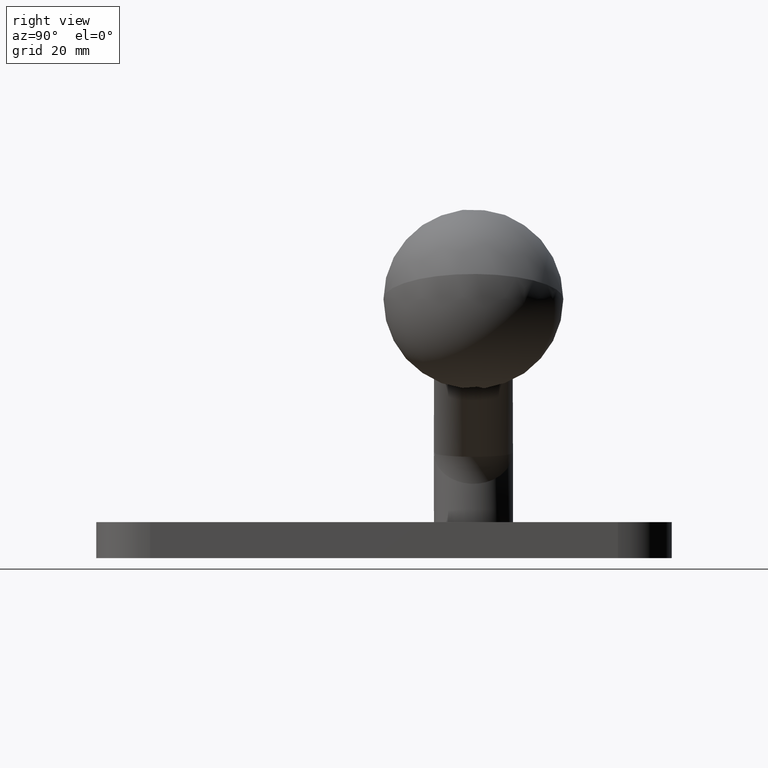
[diagram: clean part render]
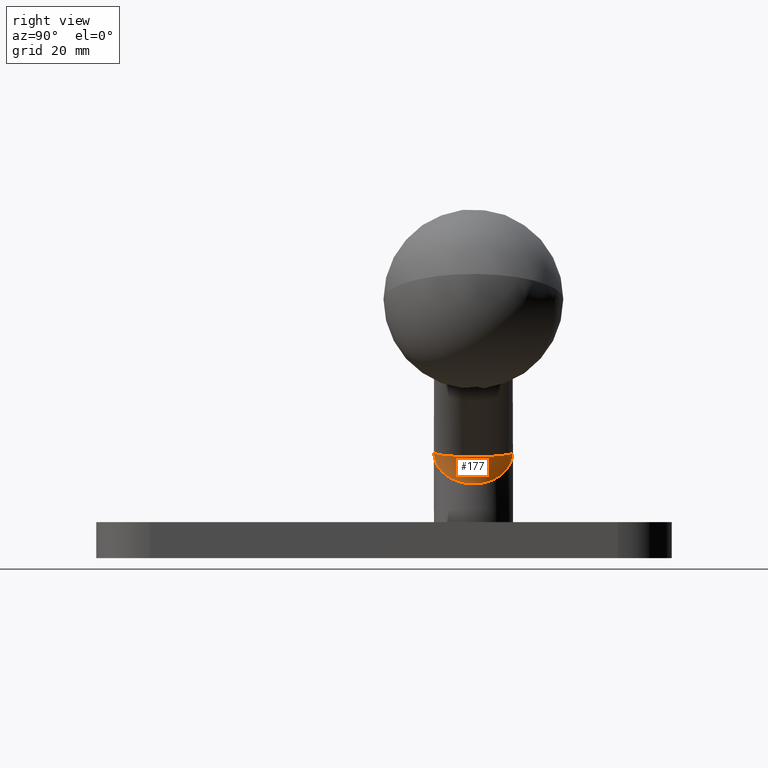
[diagram: same view with one face highlighted and labeled with its STEP entity id]
A machine part, right view. The second image highlights one B-rep face of the part: STEP entity #177.
In plain terms, the highlighted face is a freeform B-spline surface patch.
Its self-contained STEP definition (entity closure, byte-faithful):
#177 = ADVANCED_FACE ( 'NONE', ( #3679 ), #3668, .F. ) ;
#231 = CARTESIAN_POINT ( 'NONE',  ( 21.99999999999997158, 10.99999999999998401, 1.946233063278145270 ) ) ;
#679 = CARTESIAN_POINT ( 'NONE',  ( 10.92909303327826365, -1.439878830995884762, 10.70484150701775228 ) ) ;
#684 = CARTESIAN_POINT ( 'NONE',  ( 27.95333621235700505, -11.00000000000000355, 16.99630220884506926 ) ) ;
#723 = CARTESIAN_POINT ( 'NONE',  ( 9.887162564853426261, -4.874663269823607870, 11.52915165847816326 ) ) ;
#725 = CARTESIAN_POINT ( 'NONE',  ( 9.236156168757863938, 8.287254929552549498, 18.57314753187407064 ) ) ;
#770 = CARTESIAN_POINT ( 'NONE',  ( 10.52983742378732757, 7.269094256551453803, 18.46416021478434288 ) ) ;
#807 = CARTESIAN_POINT ( 'NONE',  ( 10.60243828600084903, 3.045726662662001871, 15.15726296840687226 ) ) ;
#896 = CARTESIAN_POINT ( 'NONE',  ( 0.9147811651901520680, -11.00000000000000000, 19.27418910037476252 ) ) ;
#939 = CARTESIAN_POINT ( 'NONE',  ( 5.402595686018859471E-15, -11.00000000000000000, 19.35125564557401034 ) ) ;
#1130 = CARTESIAN_POINT ( 'NONE',  ( 1.078506148106765845E-14, -11.00000000000000178, 19.35125564557399258 ) ) ;
#1257 = CARTESIAN_POINT ( 'NONE',  ( 10.17973274781040693, -4.269724308695109549, 15.32447204654445372 ) ) ;
#1407 = CARTESIAN_POINT ( 'NONE',  ( 3.544372242186458966, -10.43818715040396583, 16.54717024033242723 ) ) ;
#1434 = CARTESIAN_POINT ( 'NONE',  ( 7.867316879270116914, -7.762561227216938420, 16.23919137408172730 ) ) ;
#1615 = CARTESIAN_POINT ( 'NONE',  ( 13.88657327524566654, -1.439878830996116132, 18.18136904561967881 ) ) ;
#1661 = CARTESIAN_POINT ( 'NONE',  ( 11.11295539161126200, 6.709887710574307995, 18.41503492784354634 ) ) ;
#1687 = CARTESIAN_POINT ( 'NONE',  ( 8.287254929552787530, -7.269094256551264621, 12.79489840947810464 ) ) ;
#1702 = CARTESIAN_POINT ( 'NONE',  ( 13.97666810617850608, -0.7199483162016654392, 18.17377892720953980 ) ) ;
#1746 = CARTESIAN_POINT ( 'NONE',  ( 12.12939423143992457, 5.512657415856931031, 18.32940414227691051 ) ) ;
#1795 = CARTESIAN_POINT ( 'NONE',  ( 11.00000000000001243, 0.6072946970683534840, 15.00000000000003553 ) ) ;
#1922 = CARTESIAN_POINT ( 'NONE',  ( 1.635954743731397043, -10.90916098932924427, 18.70412316246219930 ) ) ;
#2352 =( BOUNDED_CURVE ( )  B_SPLINE_CURVE ( 3, ( #5592, #684, #2629, #5422 ),
 .UNSPECIFIED., .F., .F. ) 
 B_SPLINE_CURVE_WITH_KNOTS ( ( 4, 4 ),
 ( 4.712388980384689674, 7.853981633974482790 ),
 .UNSPECIFIED. ) 
 CURVE ( )  GEOMETRIC_REPRESENTATION_ITEM ( )  RATIONAL_B_SPLINE_CURVE ( ( 1.000000000000000000, 0.3333333333333333703, 0.3333333333333333703, 1.000000000000000000 ) ) 
 REPRESENTATION_ITEM ( '' )  );
#2408 = CARTESIAN_POINT ( 'NONE',  ( 6.193777332000371061, -9.887162564843988477, 18.82945541738045137 ) ) ;
#2626 = CARTESIAN_POINT ( 'NONE',  ( 6.193777332001635827, 9.887162564843631429, 18.82945541738054374 ) ) ;
#2629 = CARTESIAN_POINT ( 'NONE',  ( 27.95333621235701216, 10.99999999999999822, 16.99630220884506926 ) ) ;
#2641 = CARTESIAN_POINT ( 'NONE',  ( 9.229412024598333986, -6.075636844569462625, 15.70038917490340680 ) ) ;
#2667 = CARTESIAN_POINT ( 'NONE',  ( 8.287254929553482086, 7.269094256550570954, 12.79489840947806911 ) ) ;
#2712 = CARTESIAN_POINT ( 'NONE',  ( 3.220239124936370878, 10.55582240140069139, 18.07742985716721051 ) ) ;
#2757 = CARTESIAN_POINT ( 'NONE',  ( 5.512657415847559861, 9.546147589134260869, 14.98998624506225319 ) ) ;
#2797 = CARTESIAN_POINT ( 'NONE',  ( 1.635954743741726558, 10.90916098944561696, 18.70412316242745732 ) ) ;
#2922 = CARTESIAN_POINT ( 'NONE',  ( 3.623906405500773698, -10.64818313558681062, 19.04595645769901680 ) ) ;
#3090 = CARTESIAN_POINT ( 'NONE',  ( 9.236156168757974072, -8.287254929553299121, 18.57314753187529632 ) ) ;
#3349 = CARTESIAN_POINT ( 'NONE',  ( 3.220239124946806974, -10.55582240151740869, 18.07742985713228734 ) ) ;
#3585 = CARTESIAN_POINT ( 'NONE',  ( 8.822342223963236307, 6.659776321984671732, 15.86141324473610048 ) ) ;
#3609 = CARTESIAN_POINT ( 'NONE',  ( 8.822342223965760510, -6.659776321990632297, 15.86141324473352654 ) ) ;
#3626 = CARTESIAN_POINT ( 'NONE',  ( 9.908750060303846752, 4.880226819671553251, 15.43166431462379684 ) ) ;
#3666 = CARTESIAN_POINT ( 'NONE',  ( 10.43818715039512135, 3.544372242207829871, 11.09321550598993866 ) ) ;
#3668 =( BOUNDED_SURFACE ( )  B_SPLINE_SURFACE ( 3, 2, ( 
 ( #6799, #939, #8789 ),
 ( #896, #9733, #11739 ),
 ( #7808, #1922, #5807 ),
 ( #2922, #3349, #10168 ),
 ( #11226, #9232, #1407 ),
 ( #2408, #4339, #8146 ),
 ( #4064, #8244, #9446 ),
 ( #6012, #8649, #10899 ),
 ( #3090, #1434, #6525 ),
 ( #4668, #3609, #1687 ),
 ( #8497, #2641, #10312 ),
 ( #8375, #4890, #12584 ),
 ( #10130, #1257, #723 ),
 ( #4419, #6542, #9569 ),
 ( #4689, #11571, #9481 ),
 ( #1615, #11529, #679 ),
 ( #1702, #10601, #3707 ),
 ( #9607, #1795, #8581 ),
 ( #6685, #11608, #5633 ),
 ( #4599, #5589, #12557 ),
 ( #5672, #807, #3666 ),
 ( #12510, #7543, #6635 ),
 ( #1746, #3626, #6594 ),
 ( #1661, #10554, #12606 ),
 ( #770, #3585, #2667 ),
 ( #725, #8531, #9525 ),
 ( #7680, #8667, #7632 ),
 ( #8623, #6730, #2757 ),
 ( #2626, #7507, #10503 ),
 ( #12651, #7588, #8485 ),
 ( #10463, #2712, #4639 ),
 ( #4558, #2797, #5537 ),
 ( #9659, #3749, #10649 ),
 ( #4733, #11657, #11480 ) ),
 .UNSPECIFIED., .F., .F., .F. ) 
 B_SPLINE_SURFACE_WITH_KNOTS ( ( 4, 2, 2, 2, 2, 2, 2, 2, 2, 2, 2, 2, 2, 2, 2, 2, 4 ),
 ( 3, 3 ),
 ( 4.712388980384689674, 4.908738521234051966, 5.105088062083414258, 5.301437602932775661, 5.497787143782137953, 5.694136684631500245, 5.890486225480861648, 6.086835766330223940, 6.283185307179586232, 6.479534848028948524, 6.675884388878310816, 6.872233929727672219, 7.068583470577034511, 7.264933011426396803, 7.461282552275758206, 7.657632093125120498, 7.853981633974482790 ),
 ( 0.000000000000000000, 1.000000000000000000 ),
 .UNSPECIFIED. ) 
 GEOMETRIC_REPRESENTATION_ITEM ( )  RATIONAL_B_SPLINE_SURFACE ( (
 ( 1.000000000000000000, 1.000000000000000000, 1.000000000000000000),
 ( 1.000000000000000000, 1.000003721399447487, 1.000000000000000000),
 ( 1.000000000000000000, 0.9991206620187771392, 1.000000000000000000),
 ( 1.000000000000000000, 0.9957230236367944354, 1.000000000000000000),
 ( 1.000000000000000000, 0.9932054936354295371, 1.000000000000000000),
 ( 1.000000000000000000, 0.9868806866984661808, 1.000000000000000000),
 ( 1.000000000000000000, 0.9830750323032146909, 1.000000000000000000),
 ( 1.000000000000000000, 0.9747171718646607808, 1.000000000000000000),
 ( 1.000000000000000000, 0.9701675354598475742, 1.000000000000000000),
 ( 1.000000000000000000, 0.9609963127232188373, 1.000000000000000000),
 ( 1.000000000000000000, 0.9563782011257807580, 1.000000000000000000),
 ( 1.000000000000000000, 0.9477849490160208390, 1.000000000000000000),
 ( 1.000000000000000000, 0.9438138046340357468, 1.000000000000000000),
 ( 1.000000000000000000, 0.9371557154563828762, 1.000000000000000000),
 ( 1.000000000000000000, 0.9344724453801728226, 1.000000000000000000),
 ( 1.000000000000000000, 0.9308388655967781977, 1.000000000000000000),
 ( 1.000000000000000000, 0.9298908023335933359, 1.000000000000000000),
 ( 1.000000000000000000, 0.9298908023335933359, 1.000000000000000000),
 ( 1.000000000000000000, 0.9308388655968582448, 1.000000000000000000),
 ( 1.000000000000000000, 0.9344724453800925534, 1.000000000000000000),
 ( 1.000000000000000000, 0.9371557154563827652, 1.000000000000000000),
 ( 1.000000000000000000, 0.9438138046340356357, 1.000000000000000000),
 ( 1.000000000000000000, 0.9477849490159389045, 1.000000000000000000),
 ( 1.000000000000000000, 0.9563782011258624705, 1.000000000000000000),
 ( 1.000000000000000000, 0.9609963127231353486, 1.000000000000000000),
 ( 1.000000000000000000, 0.9701675354599301748, 1.000000000000000000),
 ( 1.000000000000000000, 0.9747171718646606697, 1.000000000000000000),
 ( 1.000000000000000000, 0.9830750323032145799, 1.000000000000000000),
 ( 1.000000000000000000, 0.9868806866984660697, 1.000000000000000000),
 ( 1.000000000000000000, 0.9932054936354294261, 1.000000000000000000),
 ( 1.000000000000000000, 0.9957230236368802556, 1.000000000000000000),
 ( 1.000000000000000000, 0.9991206620186913190, 1.000000000000000000),
 ( 1.000000000000000000, 1.000003721399511436, 1.000000000000000000),
 ( 1.000000000000000000, 1.000000000000000000, 1.000000000000000000) ) ) 
 REPRESENTATION_ITEM ( '' )  SURFACE ( )  );
#3678 = VERTEX_POINT ( 'NONE', #4276 ) ;
#3679 = FACE_OUTER_BOUND ( 'NONE', #10266, .T. ) ;
#3707 = CARTESIAN_POINT ( 'NONE',  ( 11.00000000000000888, -0.7199483162016662163, 10.64874435442606426 ) ) ;
#3749 = CARTESIAN_POINT ( 'NONE',  ( 0.8174075354526428860, 11.00000000000402878, 19.02791481344319280 ) ) ;
#4064 = CARTESIAN_POINT ( 'NONE',  ( 7.004416644032156469, -9.546147589136060319, 18.76116239435144095 ) ) ;
#4115 = CARTESIAN_POINT ( 'NONE',  ( 1.103679378501649205E-14, 11.00000000000000178, 19.35125564557399258 ) ) ;
#4276 = CARTESIAN_POINT ( 'NONE',  ( 1.078506148106765845E-14, -11.00000000000000178, 19.35125564557399258 ) ) ;
#4339 = CARTESIAN_POINT ( 'NONE',  ( 5.427593820518415768, -9.619978119850923548, 17.20426944071693853 ) ) ;
#4419 = CARTESIAN_POINT ( 'NONE',  ( 13.26282522102195927, -3.544372242208381429, 18.23391724998069208 ) ) ;
#4558 = CARTESIAN_POINT ( 'NONE',  ( 1.829518957593449846, 10.92909303328391601, 19.19712620914247481 ) ) ;
#4599 = CARTESIAN_POINT ( 'NONE',  ( 13.52964741999969078, 2.852108253358137890, 18.21143857875264516 ) ) ;
#4639 = CARTESIAN_POINT ( 'NONE',  ( 2.852108253388758730, 10.64818313558687990, 17.09484616569312720 ) ) ;
#4668 = CARTESIAN_POINT ( 'NONE',  ( 10.52983742378710375, -7.269094256550785005, 18.46416021478312430 ) ) ;
#4689 = CARTESIAN_POINT ( 'NONE',  ( 13.52964741999667098, -2.852108253358733414, 18.21143857874960048 ) ) ;
#4733 = CARTESIAN_POINT ( 'NONE',  ( -3.836901103704024403E-14, 11.00000000000000000, 19.35125564557401390 ) ) ;
#4890 = CARTESIAN_POINT ( 'NONE',  ( 9.908750060301239060, -4.880226819671616312, 15.43166431462380750 ) ) ;
#5422 = CARTESIAN_POINT ( 'NONE',  ( 1.103679378501649205E-14, 11.00000000000000178, 19.35125564557399258 ) ) ;
#5537 = CARTESIAN_POINT ( 'NONE',  ( 1.439878830966099255, 10.92909303328418247, 18.21211366517679409 ) ) ;
#5589 = CARTESIAN_POINT ( 'NONE',  ( 10.75319914060290749, 2.433778498289038694, 15.09762669388729783 ) ) ;
#5592 = CARTESIAN_POINT ( 'NONE',  ( 1.078506148106765845E-14, -11.00000000000000178, 19.35125564557399258 ) ) ;
#5633 = CARTESIAN_POINT ( 'NONE',  ( 10.92909303327811976, 1.439878830996581316, 10.70484150701900283 ) ) ;
#5672 = CARTESIAN_POINT ( 'NONE',  ( 13.26282522102282435, 3.544372242207484813, 18.23391724998107932 ) ) ;
#5807 = CARTESIAN_POINT ( 'NONE',  ( 1.439878830966010437, -10.92909303328419846, 18.21211366517681185 ) ) ;
#5987 = CARTESIAN_POINT ( 'NONE',  ( 21.99999999999997158, -10.99999999999997868, 1.946233063278145270 ) ) ;
#6012 = CARTESIAN_POINT ( 'NONE',  ( 8.525624869142321316, -8.746183881519932868, 18.63300686720276644 ) ) ;
#6525 = CARTESIAN_POINT ( 'NONE',  ( 7.269094256551221989, -8.287254929552826610, 13.60040338702353679 ) ) ;
#6542 = CARTESIAN_POINT ( 'NONE',  ( 10.60243828599956828, -3.045726662663296835, 15.15726296840814058 ) ) ;
#6594 = CARTESIAN_POINT ( 'NONE',  ( 9.546147589127457422, 5.512657415857732168, 11.79894135635993813 ) ) ;
#6635 = CARTESIAN_POINT ( 'NONE',  ( 9.887162564853216651, 4.874663269824117684, 11.52915165847815615 ) ) ;
#6685 = CARTESIAN_POINT ( 'NONE',  ( 13.88657327524265384, 1.439878830996666359, 18.18136904561663059 ) ) ;
#6730 = CARTESIAN_POINT ( 'NONE',  ( 6.100466480934221281, 9.209623466699268235, 16.93810208049985278 ) ) ;
#6799 = CARTESIAN_POINT ( 'NONE',  ( 7.254295754689005331E-15, -11.00000000000000000, 19.35125564557400679 ) ) ;
#7386 = CARTESIAN_POINT ( 'NONE',  ( 1.103679378501649205E-14, 11.00000000000000178, 19.35125564557399258 ) ) ;
#7500 = EDGE_CURVE ( 'NONE', #10893, #3678, #8643, .T. ) ;
#7507 = CARTESIAN_POINT ( 'NONE',  ( 5.427593820519112988, 9.619978119850895126, 17.20426944071959241 ) ) ;
#7543 = CARTESIAN_POINT ( 'NONE',  ( 10.17973274780916348, 4.269724308696340564, 15.32447204654571493 ) ) ;
#7588 = CARTESIAN_POINT ( 'NONE',  ( 3.987996439165786278, 10.29234214139976089, 17.77372909825889380 ) ) ;
#7632 = CARTESIAN_POINT ( 'NONE',  ( 6.709887710583720910, 8.746183881521730541, 14.04281259432819340 ) ) ;
#7680 = CARTESIAN_POINT ( 'NONE',  ( 8.525624869141745776, 8.746183881521385928, 18.63300686720532440 ) ) ;
#7808 = CARTESIAN_POINT ( 'NONE',  ( 1.829518957593049056, -10.92909303328426240, 19.19712620914456025 ) ) ;
#8146 = CARTESIAN_POINT ( 'NONE',  ( 4.874663269845490809, -9.887162564844352630, 15.49472726863073646 ) ) ;
#8244 = CARTESIAN_POINT ( 'NONE',  ( 6.100466480938787406, -9.209623466711050810, 16.93810208049986343 ) ) ;
#8375 = CARTESIAN_POINT ( 'NONE',  ( 12.12939423143829565, -5.512657415857804999, 18.32940414227603299 ) ) ;
#8485 = CARTESIAN_POINT ( 'NONE',  ( 3.544372242186490940, 10.43818715040395695, 16.54717024033240236 ) ) ;
#8497 = CARTESIAN_POINT ( 'NONE',  ( 11.11295539161286605, -6.709887710573457120, 18.41503492784443097 ) ) ;
#8531 = CARTESIAN_POINT ( 'NONE',  ( 7.867316879272782337, 7.762561227222650295, 16.23919137407912316 ) ) ;
#8581 = CARTESIAN_POINT ( 'NONE',  ( 11.00000000000000533, 0.7199483162017051852, 10.64874435442606426 ) ) ;
#8623 = CARTESIAN_POINT ( 'NONE',  ( 7.004416644032757766, 9.546147589134600153, 18.76116239434887589 ) ) ;
#8643 =( BOUNDED_CURVE ( )  B_SPLINE_CURVE ( 3, ( #4115, #231, #5987, #1130 ),
 .UNSPECIFIED., .F., .F. ) 
 B_SPLINE_CURVE_WITH_KNOTS ( ( 4, 4 ),
 ( 4.712388980384690562, 7.853981633974481902 ),
 .UNSPECIFIED. ) 
 CURVE ( )  GEOMETRIC_REPRESENTATION_ITEM ( )  RATIONAL_B_SPLINE_CURVE ( ( 1.000000000000000000, 0.3333333333333339810, 0.3333333333333339810, 1.000000000000000000 ) ) 
 REPRESENTATION_ITEM ( '' )  );
#8649 = CARTESIAN_POINT ( 'NONE',  ( 7.320419902532260714, -8.281519759456708485, 16.45552669749496033 ) ) ;
#8667 = CARTESIAN_POINT ( 'NONE',  ( 7.320419902536895229, 8.281519759468592312, 16.45552669749494612 ) ) ;
#8789 = CARTESIAN_POINT ( 'NONE',  ( 3.550895617348713217E-15, -11.00000000000000000, 19.35125564557401390 ) ) ;
#9232 = CARTESIAN_POINT ( 'NONE',  ( 3.987996439166420881, -10.29234214139979109, 17.77372909826156189 ) ) ;
#9446 = CARTESIAN_POINT ( 'NONE',  ( 5.512657415846185849, -9.546147589135175693, 14.98998624506226207 ) ) ;
#9481 = CARTESIAN_POINT ( 'NONE',  ( 10.64818313559281293, -2.852108253358967005, 10.92707983032864050 ) ) ;
#9525 = CARTESIAN_POINT ( 'NONE',  ( 7.269094256550625133, 8.287254929553435900, 13.60040338702350127 ) ) ;
#9569 = CARTESIAN_POINT ( 'NONE',  ( 10.43818715039488687, -3.544372242208399637, 11.09321550598994754 ) ) ;
#9607 = CARTESIAN_POINT ( 'NONE',  ( 13.97666810617850253, 0.7199483162017044080, 18.17377892720953980 ) ) ;
#9659 = CARTESIAN_POINT ( 'NONE',  ( 0.9147811651891258888, 11.00000000000000355, 19.27418910036656641 ) ) ;
#9733 = CARTESIAN_POINT ( 'NONE',  ( 0.8174075354740794053, -11.00000000000537170, 19.02791481345135338 ) ) ;
#9938 = ORIENTED_EDGE ( 'NONE', *, *, #10908, .F. ) ;
#10130 = CARTESIAN_POINT ( 'NONE',  ( 12.56268997098125340, -4.874663269823621192, 18.29290076095634632 ) ) ;
#10168 = CARTESIAN_POINT ( 'NONE',  ( 2.852108253388801806, -10.64818313558687279, 17.09484616569314497 ) ) ;
#10266 = EDGE_LOOP ( 'NONE', ( #9938, #11174 ) ) ;
#10312 = CARTESIAN_POINT ( 'NONE',  ( 8.746183881528144966, -6.709887710574109931, 12.43182255616819987 ) ) ;
#10463 = CARTESIAN_POINT ( 'NONE',  ( 3.623906405500428640, 10.64818313558713925, 19.04595645770110224 ) ) ;
#10503 = CARTESIAN_POINT ( 'NONE',  ( 4.874663269845521008, 9.887162564844340196, 15.49472726863071337 ) ) ;
#10554 = CARTESIAN_POINT ( 'NONE',  ( 9.229412024595822217, 6.075636844569401340, 15.70038917490339614 ) ) ;
#10601 = CARTESIAN_POINT ( 'NONE',  ( 11.00000000000001243, -0.6072946970683202883, 15.00000000000003553 ) ) ;
#10649 = CARTESIAN_POINT ( 'NONE',  ( 0.7199564832347830068, 11.00000000000000178, 18.78167115243580554 ) ) ;
#10893 = VERTEX_POINT ( 'NONE', #7386 ) ;
#10899 = CARTESIAN_POINT ( 'NONE',  ( 6.709887710585072718, -8.746183881520824599, 14.04281259432820050 ) ) ;
#10908 = EDGE_CURVE ( 'NONE', #3678, #10893, #2352, .T. ) ;
#11174 = ORIENTED_EDGE ( 'NONE', *, *, #7500, .F. ) ;
#11226 = CARTESIAN_POINT ( 'NONE',  ( 4.503501315799739224, -10.43818715040432465, 18.97185420954017232 ) ) ;
#11480 = CARTESIAN_POINT ( 'NONE',  ( -3.283473189133262177E-14, 11.00000000000000000, 19.35125564557404232 ) ) ;
#11529 = CARTESIAN_POINT ( 'NONE',  ( 10.95220652411075157, -1.213630198646539204, 15.01890560288900289 ) ) ;
#11571 = CARTESIAN_POINT ( 'NONE',  ( 10.75319914060041704, -2.433778498288850400, 15.09762669389104772 ) ) ;
#11608 = CARTESIAN_POINT ( 'NONE',  ( 10.95220652410823448, 1.213630198646415304, 15.01890560289276877 ) ) ;
#11657 = CARTESIAN_POINT ( 'NONE',  ( -3.560187146418642975E-14, 11.00000000000000000, 19.35125564557402811 ) ) ;
#11739 = CARTESIAN_POINT ( 'NONE',  ( 0.7199564832399820702, -11.00000000000000000, 18.78167115244243845 ) ) ;
#12510 = CARTESIAN_POINT ( 'NONE',  ( 12.56268997098041851, 4.874663269824456968, 18.29290076095595907 ) ) ;
#12557 = CARTESIAN_POINT ( 'NONE',  ( 10.64818313559295682, 2.852108253358226264, 10.92707983032738639 ) ) ;
#12584 = CARTESIAN_POINT ( 'NONE',  ( 9.546147589127841115, -5.512657415857156629, 11.79894135636122421 ) ) ;
#12606 = CARTESIAN_POINT ( 'NONE',  ( 8.746183881528549975, 6.709887710573513964, 12.43182255616947174 ) ) ;
#12651 = CARTESIAN_POINT ( 'NONE',  ( 4.503501315798552618, 10.43818715040465683, 18.97185420954007284 ) ) ;